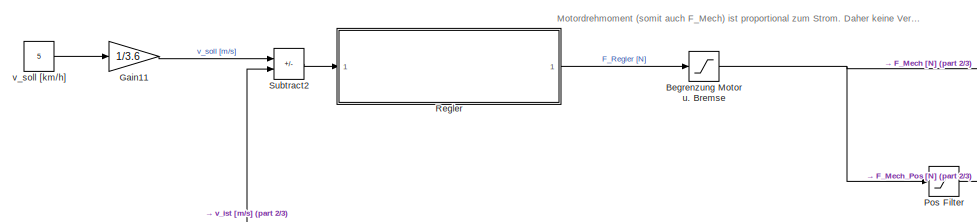
[diagram: root canvas - part 1/3, top left region]
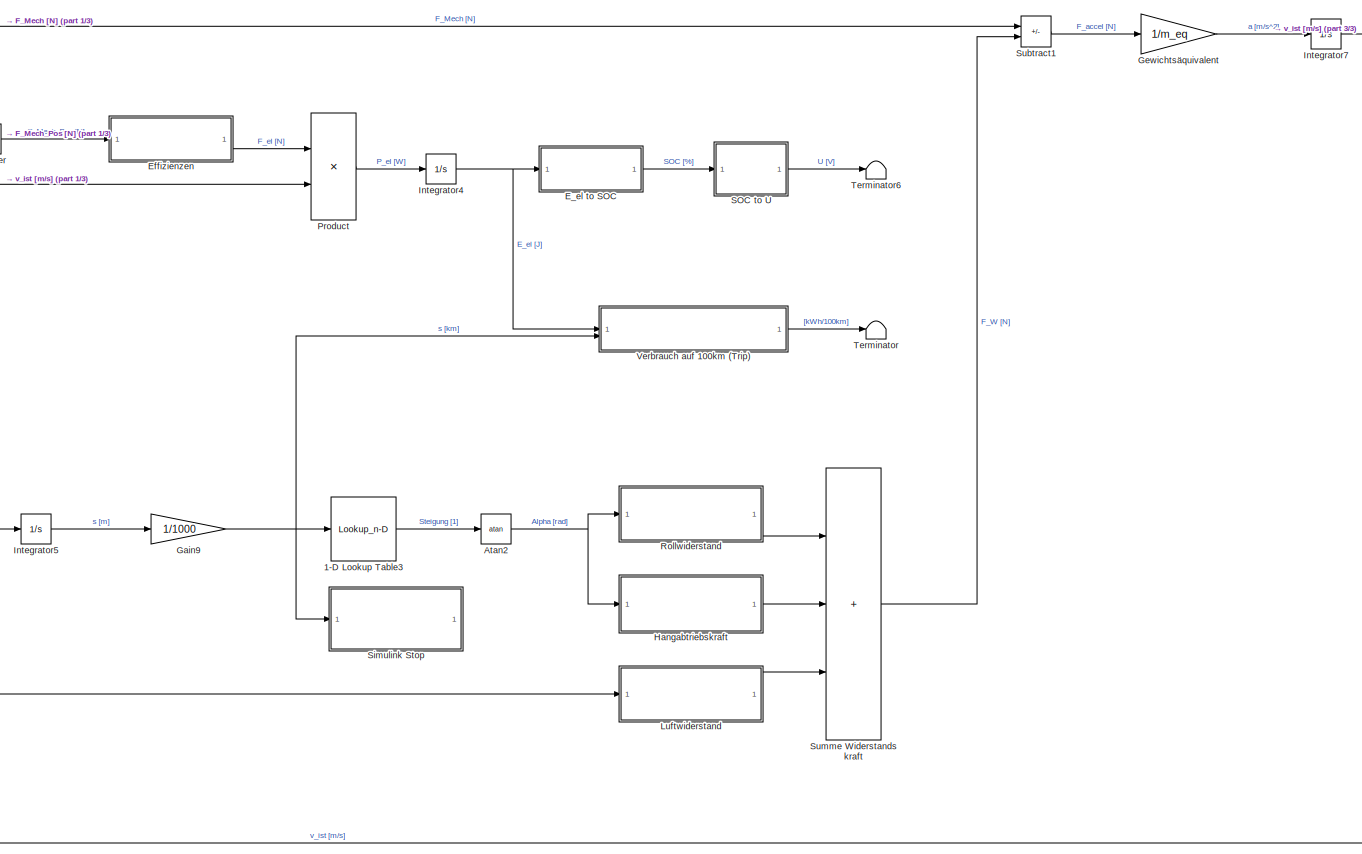
[diagram: root canvas - part 2/3, center side, full height]
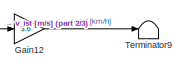
[diagram: root canvas - part 3/3, top right region]
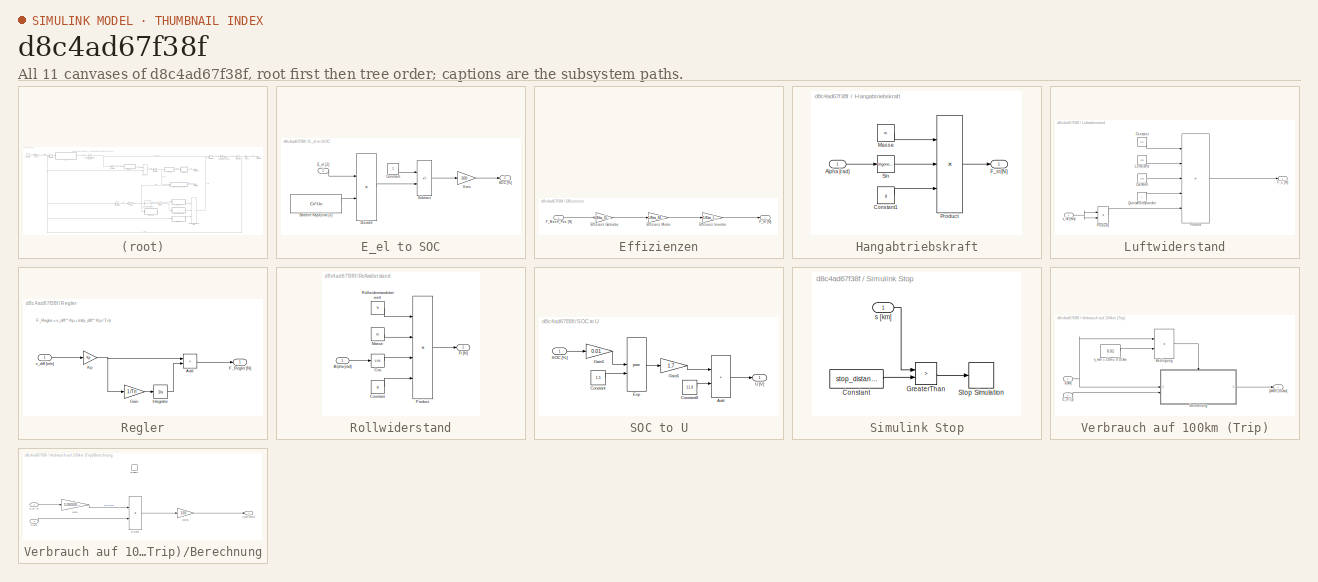
[diagram: thumbnail index - all 11 canvases of the model, root first then tree order]
MODEL slx_d8c4ad67f38f
KIND model
CONFIG AbsTol = auto
CONFIG EnableMultiTasking = on
CONFIG FixedStep = 0.1
CONFIG MaxStep = 15
CONFIG MinStep = auto
CONFIG RelTol = 1e-6
CONFIG SampleTimeConstraint = Unconstrained
CONFIG SolverName = ode23t
CONFIG StartTime = 0.0
CONFIG StopTime = inf
BLOCK [Lookup_n-D] 1-D Lookup Table3
  BreakpointsForDimension1 = gradient_distance_lookup
  ExtrapMethod = Clip
  InputPortMap = u0
  InternalRulePriority = Speed
  NumberOfTableDimensions = 1
  RndMeth = Simplest
  Table = gradient_lookup
BLOCK [Trigonometry] Atan2
  Operator = atan
BLOCK [Saturate] Begrenzung Motor u. Bremse
  LowerLimit = -f_reibwert*m*g
  UpperLimit = M_Motor*i1*i2/rR
BLOCK [SubSystem] E_el to SOC
BLOCK [Constant] E_el to SOC/Batterie Kapazität [J]
  Value = Cn*Un
BLOCK [Constant] E_el to SOC/Constant
BLOCK [Product] E_el to SOC/Divide6
  Inputs = */
BLOCK [Inport] E_el to SOC/E_el [J]
BLOCK [Gain] E_el to SOC/Gain
  Gain = 100
BLOCK [Outport] E_el to SOC/SOC [%]
BLOCK [Sum] E_el to SOC/Subtract
  IconShape = rectangular
  Inputs = +-
BLOCK [SubSystem] Effizienzen
BLOCK [Gain] Effizienzen/Effizienz Getriebe
  Gain = 1/Eta_Getriebe
BLOCK [Gain] Effizienzen/Effizienz Inverter
  Gain = 1/Eta_Inverter
BLOCK [Gain] Effizienzen/Effizienz Motor
  Gain = 1/Eta_Motor
BLOCK [Inport] Effizienzen/F_Mech_Pos [N]
BLOCK [Outport] Effizienzen/F_el [N]
BLOCK [Gain] Gain11
  Gain = 1/3.6
BLOCK [Gain] Gain12
  Gain = 3.6
BLOCK [Gain] Gain9
  Gain = 1/1000
BLOCK [Gain] Gewichtsäquivalent
  Gain = 1/m_eq
BLOCK [SubSystem] Hangabtriebskraft
BLOCK [Inport] Hangabtriebskraft/Alpha [rad]
BLOCK [Constant] Hangabtriebskraft/Constant1
  Value = g
BLOCK [Outport] Hangabtriebskraft/F_st [N]
BLOCK [Constant] Hangabtriebskraft/Masse
  Value = m
BLOCK [Product] Hangabtriebskraft/Product
  Inputs = 3
BLOCK [Trigonometry] Hangabtriebskraft/Sin
BLOCK [Integrator] Integrator4
BLOCK [Integrator] Integrator5
BLOCK [Integrator] Integrator7
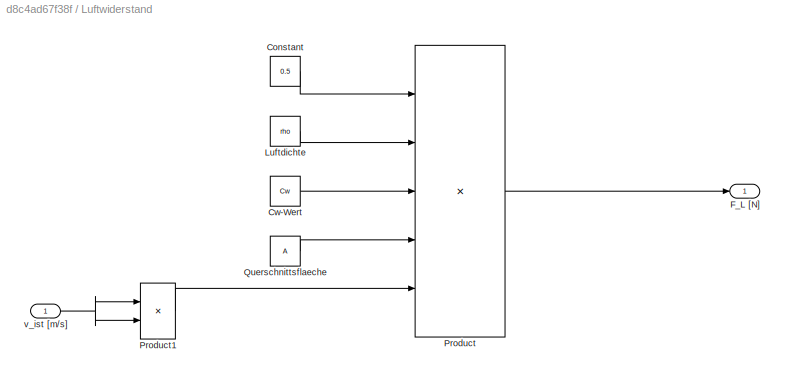
BLOCK [SubSystem] Luftwiderstand
BLOCK [Constant] Luftwiderstand/Constant
  Value = 0.5
BLOCK [Constant] Luftwiderstand/Cw-Wert
  Value = Cw
BLOCK [Outport] Luftwiderstand/F_L [N]
BLOCK [Constant] Luftwiderstand/Luftdichte
  Value = rho
BLOCK [Product] Luftwiderstand/Product
  Inputs = 5
BLOCK [Product] Luftwiderstand/Product1
BLOCK [Constant] Luftwiderstand/Querschnittsflaeche
  Value = A
BLOCK [Inport] Luftwiderstand/v_ist [m//s]
BLOCK [Saturate] Pos Filter
  LowerLimit = 0
  UpperLimit = inf
BLOCK [Product] Product
BLOCK [SubSystem] Regler
BLOCK [Sum] Regler/Add
  IconShape = rectangular
BLOCK [Outport] Regler/F_Regler [N]
BLOCK [Gain] Regler/Gain
  Gain = 1/Tn
BLOCK [Integrator] Regler/Integrator
BLOCK [Gain] Regler/Kp
  Gain = Kp
BLOCK [Inport] Regler/v_diff [m//s]
BLOCK [SubSystem] Rollwiderstand
BLOCK [Inport] Rollwiderstand/Alpha [rad]
BLOCK [Constant] Rollwiderstand/Constant
  Value = g
BLOCK [Trigonometry] Rollwiderstand/Cos
  Operator = cos
BLOCK [Outport] Rollwiderstand/Fr [N]
BLOCK [Constant] Rollwiderstand/Masse
  Value = m
BLOCK [Product] Rollwiderstand/Product
  Inputs = 4
BLOCK [Constant] Rollwiderstand/Rollwiderstandsbeiwert
  Value = fr
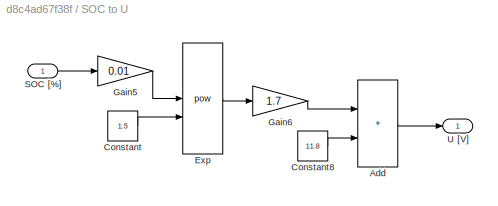
BLOCK [SubSystem] SOC to U
BLOCK [Sum] SOC to U/Add
  IconShape = rectangular
BLOCK [Constant] SOC to U/Constant
  Value = 1.5
BLOCK [Constant] SOC to U/Constant8
  Value = 11.8
BLOCK [Math] SOC to U/Exp
  Operator = pow
BLOCK [Gain] SOC to U/Gain5
  Gain = 0.01
BLOCK [Gain] SOC to U/Gain6
  Gain = 1.7
BLOCK [Inport] SOC to U/SOC [%]
BLOCK [Outport] SOC to U/U [V]
BLOCK [SubSystem] Simulink Stop
BLOCK [Constant] Simulink Stop/Constant
  Value = stop_distance
BLOCK [RelationalOperator] Simulink Stop/GreaterThan
  InputSameDT = off
  Operator = >
  OutDataTypeStr = boolean
  RndMeth = Simplest
BLOCK [Stop] Simulink Stop/Stop Simulation
BLOCK [Inport] Simulink Stop/s [km]
BLOCK [Sum] Subtract1
  IconShape = rectangular
  Inputs = +-
BLOCK [Sum] Subtract2
  IconShape = rectangular
  Inputs = +-
BLOCK [Sum] Summe Widerstandskraft
  IconShape = rectangular
  Inputs = +++
BLOCK [Terminator] Terminator
BLOCK [Terminator] Terminator6
BLOCK [Terminator] Terminator9
BLOCK [SubSystem] Verbrauch auf 100km (Trip)
BLOCK [RelationalOperator] Verbrauch auf 100km (Trip)/Bedingung
  InputSameDT = off
  Operator = >
  OutDataTypeStr = boolean
  RndMeth = Simplest
BLOCK [SubSystem] Verbrauch auf 100km (Trip)/Berechnung
  TreatAsAtomicUnit = on
BLOCK [Product] Verbrauch auf 100km (Trip)/Berechnung/Divide4
  Inputs = */
BLOCK [Inport] Verbrauch auf 100km (Trip)/Berechnung/E_el [J]
  Port = 2
BLOCK [EnablePort] Verbrauch auf 100km (Trip)/Berechnung/Enable
BLOCK [Gain] Verbrauch auf 100km (Trip)/Berechnung/Gain
  Gain = 1/3600000
BLOCK [Gain] Verbrauch auf 100km (Trip)/Berechnung/Gain5
  Gain = 100
BLOCK [Outport] Verbrauch auf 100km (Trip)/Berechnung/[kWh//100km]
BLOCK [Inport] Verbrauch auf 100km (Trip)/Berechnung/s [km]
BLOCK [Inport] Verbrauch auf 100km (Trip)/E_el [J]
BLOCK [Outport] Verbrauch auf 100km (Trip)/[kWh//100km]
BLOCK [Inport] Verbrauch auf 100km (Trip)/s [km]
  Port = 2
BLOCK [Constant] Verbrauch auf 100km (Trip)/s_min = 10m = 0.01km
  Value = 0.01
BLOCK [Constant] v_soll [km//h]
  Value = 5
ANNOTATION (root): Motordrehmoment (somit auch F_Mech) ist proportional zum Strom. Daher keine Verzögerung zwischen Reglervorgabe und anliegender F_Mech [N]
ANNOTATION Regler: F_Regler = v_diff * Kp + Int(v_diff * Kp / Tn)
LINE 1-D Lookup Table3:1 -> Atan2:1
NET Atan2:1 -> Hangabtriebskraft:1, Rollwiderstand:1
NET Begrenzung Motor u. Bremse:1 -> Pos Filter:1, Subtract1:1
LINE E_el to SOC/Batterie Kapazität [J]:1 -> E_el to SOC/Divide6:2
LINE E_el to SOC/Constant:1 -> E_el to SOC/Subtract:1
LINE E_el to SOC/Divide6:1 -> E_el to SOC/Subtract:2
LINE E_el to SOC/E_el [J]:1 -> E_el to SOC/Divide6:1
LINE E_el to SOC/Gain:1 -> E_el to SOC/SOC [%]:1
LINE E_el to SOC/Subtract:1 -> E_el to SOC/Gain:1
LINE E_el to SOC:1 -> SOC to U:1
LINE Effizienzen/Effizienz Getriebe:1 -> Effizienzen/Effizienz Motor:1
LINE Effizienzen/Effizienz Inverter:1 -> Effizienzen/F_el [N]:1
LINE Effizienzen/Effizienz Motor:1 -> Effizienzen/Effizienz Inverter:1
LINE Effizienzen/F_Mech_Pos [N]:1 -> Effizienzen/Effizienz Getriebe:1
LINE Effizienzen:1 -> Product:1
LINE Gain11:1 -> Subtract2:1
LINE Gain12:1 -> Terminator9:1
NET Gain9:1 -> 1-D Lookup Table3:1, Simulink Stop:1, Verbrauch auf 100km (Trip):2
LINE Gewichtsäquivalent:1 -> Integrator7:1
LINE Hangabtriebskraft/Alpha [rad]:1 -> Hangabtriebskraft/Sin:1
LINE Hangabtriebskraft/Constant1:1 -> Hangabtriebskraft/Product:3
LINE Hangabtriebskraft/Masse:1 -> Hangabtriebskraft/Product:1
LINE Hangabtriebskraft/Product:1 -> Hangabtriebskraft/F_st [N]:1
LINE Hangabtriebskraft/Sin:1 -> Hangabtriebskraft/Product:2
LINE Hangabtriebskraft:1 -> Summe Widerstandskraft:2
NET Integrator4:1 -> E_el to SOC:1, Verbrauch auf 100km (Trip):1
LINE Integrator5:1 -> Gain9:1
NET Integrator7:1 -> Gain12:1, Integrator5:1, Luftwiderstand:1, Product:2, Subtract2:2
LINE Luftwiderstand/Constant:1 -> Luftwiderstand/Product:1
LINE Luftwiderstand/Cw-Wert:1 -> Luftwiderstand/Product:3
LINE Luftwiderstand/Luftdichte:1 -> Luftwiderstand/Product:2
LINE Luftwiderstand/Product1:1 -> Luftwiderstand/Product:5
LINE Luftwiderstand/Product:1 -> Luftwiderstand/F_L [N]:1
LINE Luftwiderstand/Querschnittsflaeche:1 -> Luftwiderstand/Product:4
NET Luftwiderstand/v_ist [m//s]:1 -> Luftwiderstand/Product1:1, Luftwiderstand/Product1:2
LINE Luftwiderstand:1 -> Summe Widerstandskraft:3
LINE Pos Filter:1 -> Effizienzen:1
LINE Product:1 -> Integrator4:1
LINE Regler/Add:1 -> Regler/F_Regler [N]:1
LINE Regler/Gain:1 -> Regler/Integrator:1
LINE Regler/Integrator:1 -> Regler/Add:2
NET Regler/Kp:1 -> Regler/Add:1, Regler/Gain:1
LINE Regler/v_diff [m//s]:1 -> Regler/Kp:1
LINE Regler:1 -> Begrenzung Motor u. Bremse:1
LINE Rollwiderstand/Alpha [rad]:1 -> Rollwiderstand/Cos:1
LINE Rollwiderstand/Constant:1 -> Rollwiderstand/Product:4
LINE Rollwiderstand/Cos:1 -> Rollwiderstand/Product:3
LINE Rollwiderstand/Masse:1 -> Rollwiderstand/Product:2
LINE Rollwiderstand/Product:1 -> Rollwiderstand/Fr [N]:1
LINE Rollwiderstand/Rollwiderstandsbeiwert:1 -> Rollwiderstand/Product:1
LINE Rollwiderstand:1 -> Summe Widerstandskraft:1
LINE SOC to U/Add:1 -> SOC to U/U [V]:1
LINE SOC to U/Constant8:1 -> SOC to U/Add:2
LINE SOC to U/Constant:1 -> SOC to U/Exp:2
LINE SOC to U/Exp:1 -> SOC to U/Gain6:1
LINE SOC to U/Gain5:1 -> SOC to U/Exp:1
LINE SOC to U/Gain6:1 -> SOC to U/Add:1
LINE SOC to U/SOC [%]:1 -> SOC to U/Gain5:1
LINE SOC to U:1 -> Terminator6:1
LINE Simulink Stop/Constant:1 -> Simulink Stop/GreaterThan:2
LINE Simulink Stop/GreaterThan:1 -> Simulink Stop/Stop Simulation:1
LINE Simulink Stop/s [km]:1 -> Simulink Stop/GreaterThan:1
LINE Subtract1:1 -> Gewichtsäquivalent:1
LINE Subtract2:1 -> Regler:1
LINE Summe Widerstandskraft:1 -> Subtract1:2
LINE Verbrauch auf 100km (Trip)/Bedingung:1 -> Verbrauch auf 100km (Trip)/Berechnung:enable
LINE Verbrauch auf 100km (Trip)/Berechnung/Divide4:1 -> Verbrauch auf 100km (Trip)/Berechnung/Gain5:1
LINE Verbrauch auf 100km (Trip)/Berechnung/E_el [J]:1 -> Verbrauch auf 100km (Trip)/Berechnung/Gain:1
LINE Verbrauch auf 100km (Trip)/Berechnung/Gain5:1 -> Verbrauch auf 100km (Trip)/Berechnung/[kWh//100km]:1
LINE Verbrauch auf 100km (Trip)/Berechnung/Gain:1 -> Verbrauch auf 100km (Trip)/Berechnung/Divide4:1
LINE Verbrauch auf 100km (Trip)/Berechnung/s [km]:1 -> Verbrauch auf 100km (Trip)/Berechnung/Divide4:2
LINE Verbrauch auf 100km (Trip)/Berechnung:1 -> Verbrauch auf 100km (Trip)/[kWh//100km]:1
LINE Verbrauch auf 100km (Trip)/E_el [J]:1 -> Verbrauch auf 100km (Trip)/Berechnung:2
NET Verbrauch auf 100km (Trip)/s [km]:1 -> Verbrauch auf 100km (Trip)/Bedingung:1, Verbrauch auf 100km (Trip)/Berechnung:1
LINE Verbrauch auf 100km (Trip)/s_min = 10m = 0.01km:1 -> Verbrauch auf 100km (Trip)/Bedingung:2
LINE Verbrauch auf 100km (Trip):1 -> Terminator:1
LINE v_soll [km//h]:1 -> Gain11:1
note: NET lines group one-source signal fan-out (src -> all destinations, sorted); 1:1 wires keep LINE
